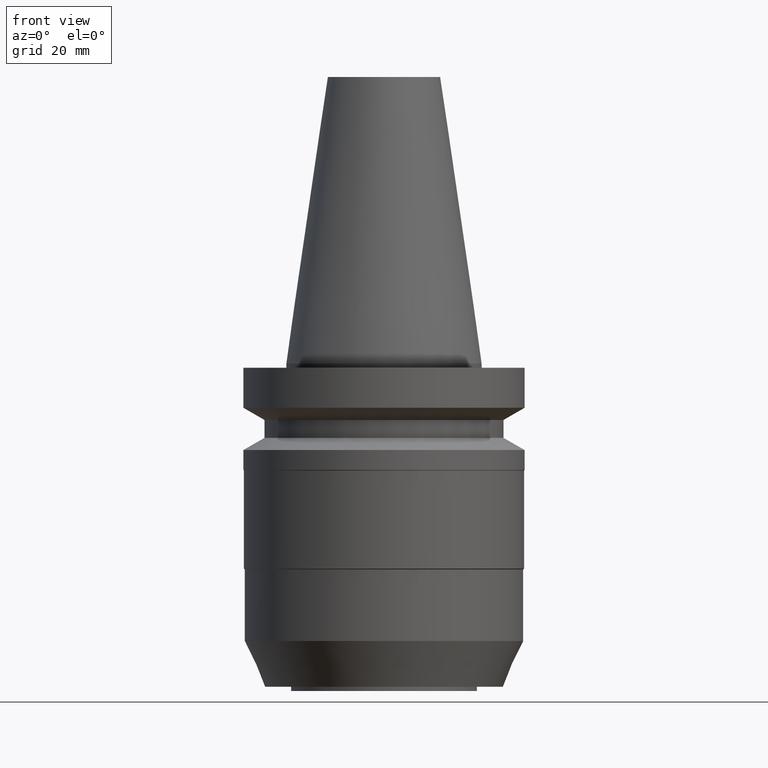
[diagram: clean part render]
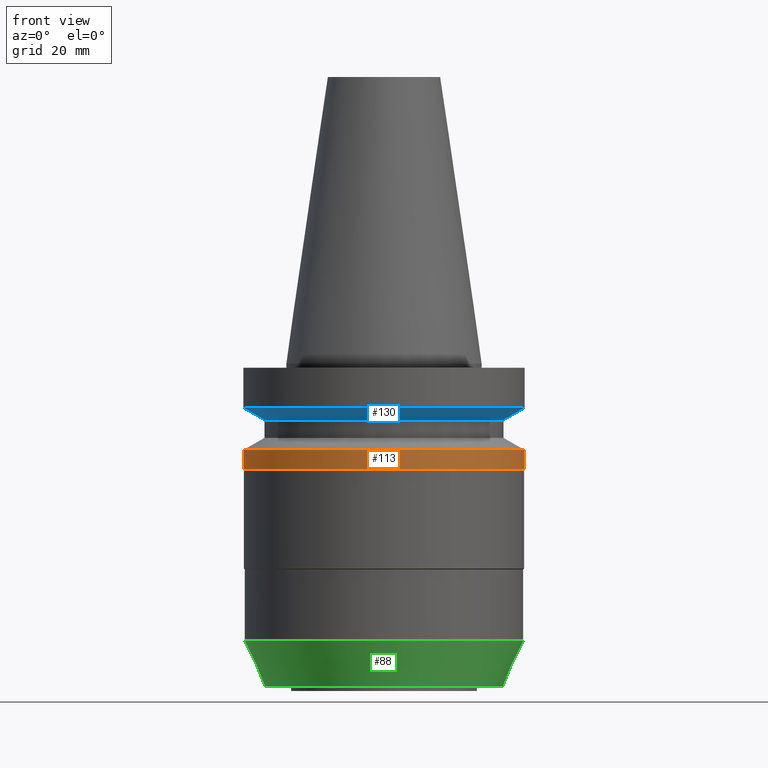
[diagram: same view with three faces highlighted in distinct colors, each labeled with its STEP entity id]
A machine part, front view with three faces highlighted in distinct colors.
Their STEP definitions:

[orange] entity #113 — the highlighted cylindrical surface (bore or boss wall) has radius 50 mm, axis along (0, 0, -1).
#83=EDGE_CURVE('Unnamed[1]',#201,#201,#202,.T.);
#113=ADVANCED_FACE('Unnamed[1]',(#246,#247),#248,.T.);
#121=EDGE_CURVE('Unnamed[1]',#258,#258,#259,.T.);
#201=VERTEX_POINT('',#351);
#202=CIRCLE('',#352,50.0);
#246=FACE_BOUND('',#407,.T.);
#247=FACE_BOUND('',#408,.T.);
#248=CYLINDRICAL_SURFACE('',#409,50.0);
#258=VERTEX_POINT('',#422);
#259=CIRCLE('',#423,50.0);
#351=CARTESIAN_POINT('',(2.31092028979915E-015,50.0,-37.7401923788655));
#352=AXIS2_PLACEMENT_3D('',#515,#516,#517);
#407=EDGE_LOOP('',(#562));
#408=EDGE_LOOP('',(#563));
#409=AXIS2_PLACEMENT_3D('',#564,#565,#566);
#422=CARTESIAN_POINT('',(1.87983283669119E-015,50.0,-30.7000000000001));
#423=AXIS2_PLACEMENT_3D('',#577,#578,#579);
#515=CARTESIAN_POINT('',(2.31092028979915E-015,4.6218405795983E-015,-37.7401923788655));
#516=DIRECTION('',(6.12323399573677E-017,1.22464679914735E-016,-1.0));
#517=DIRECTION('',(-1.23259516440783E-032,1.0,1.22464679914735E-016));
#562=ORIENTED_EDGE('',*,*,#83,.F.);
#563=ORIENTED_EDGE('',*,*,#121,.T.);
#564=CARTESIAN_POINT('',(2.09537656324517E-015,4.19075312649034E-015,-34.2200961894328));
#565=DIRECTION('',(6.12323399573677E-017,1.22464679914735E-016,-1.0));
#566=DIRECTION('',(-1.23259516440783E-032,1.0,1.22464679914735E-016));
#577=CARTESIAN_POINT('',(1.87983283669119E-015,3.75966567338238E-015,-30.7000000000001));
#578=DIRECTION('',(6.12323399573677E-017,1.22464679914735E-016,-1.0));
#579=DIRECTION('',(-1.23259516440783E-032,1.0,1.22464679914735E-016));

[blue] entity #130 — the highlighted conical surface has half-angle 60 deg.
#101=EDGE_CURVE('Unnamed[1]',#228,#228,#229,.T.);
#130=ADVANCED_FACE('Unnamed[1]',(#271,#272),#273,.T.);
#137=EDGE_CURVE('Unnamed[1]',#283,#283,#284,.T.);
#228=VERTEX_POINT('',#384);
#229=CIRCLE('',#385,50.0);
#271=FACE_BOUND('',#439,.T.);
#272=FACE_BOUND('',#440,.T.);
#273=CONICAL_SURFACE('',#441,46.25,1.04719755108882);
#283=VERTEX_POINT('',#454);
#284=CIRCLE('',#455,42.5);
#384=CARTESIAN_POINT('',(9.61347737330674E-016,50.0,-15.7));
#385=AXIS2_PLACEMENT_3D('',#543,#544,#545);
#439=EDGE_LOOP('',(#590));
#440=EDGE_LOOP('',(#591));
#441=AXIS2_PLACEMENT_3D('',#592,#593,#594);
#454=CARTESIAN_POINT('',(1.2264915470779E-015,42.5,-20.03012702));
#455=AXIS2_PLACEMENT_3D('',#604,#605,#606);
#543=CARTESIAN_POINT('',(9.61347737330675E-016,1.92269547466135E-015,-15.7));
#544=DIRECTION('',(6.12323399573677E-017,1.22464679914735E-016,-1.0));
#545=DIRECTION('',(-1.23259516440783E-032,1.0,1.22464679914735E-016));
#590=ORIENTED_EDGE('',*,*,#137,.F.);
#591=ORIENTED_EDGE('',*,*,#101,.T.);
#592=CARTESIAN_POINT('',(1.09391964220429E-015,2.18783928440857E-015,-17.86506351));
#593=DIRECTION('',(-6.12323399573676E-017,-1.22464679914735E-016,1.0));
#594=DIRECTION('',(-1.23259516440783E-032,1.0,1.22464679914735E-016));
#604=CARTESIAN_POINT('',(1.2264915470779E-015,2.45298309415579E-015,-20.03012702));
#605=DIRECTION('',(6.12323399573677E-017,1.22464679914735E-016,-1.0));
#606=DIRECTION('',(-1.23259516440783E-032,1.0,1.22464679914735E-016));

[green] entity #88 — the highlighted conical surface has half-angle 24 deg.
#88=ADVANCED_FACE('Unnamed[1]',(#208,#209),#210,.T.);
#106=EDGE_CURVE('Unnamed[1]',#236,#236,#237,.T.);
#125=EDGE_CURVE('Unnamed[1]',#264,#264,#265,.T.);
#208=FACE_BOUND('',#360,.T.);
#209=FACE_BOUND('',#361,.T.);
#210=CONICAL_SURFACE('',#362,45.8809601935171,0.418879020478635);
#236=VERTEX_POINT('',#394);
#237=CIRCLE('',#395,49.5);
#264=VERTEX_POINT('',#430);
#265=CIRCLE('',#431,42.2619203870341);
#360=EDGE_LOOP('',(#522));
#361=EDGE_LOOP('',(#523));
#362=AXIS2_PLACEMENT_3D('',#524,#525,#526);
#394=CARTESIAN_POINT('',(6.03401890607593E-015,49.5,-98.543007016832));
#395=AXIS2_PLACEMENT_3D('',#552,#553,#554);
#430=CARTESIAN_POINT('',(7.02947262710581E-015,42.2619203870341,-114.8));
#431=AXIS2_PLACEMENT_3D('',#583,#584,#585);
#522=ORIENTED_EDGE('',*,*,#125,.F.);
#523=ORIENTED_EDGE('',*,*,#106,.T.);
#524=CARTESIAN_POINT('',(6.53174576659087E-015,1.30634915331817E-014,-106.671503508416));
#525=DIRECTION('',(-6.12323399573677E-017,-1.22464679914735E-016,1.0));
#526=DIRECTION('',(-1.23259516440783E-032,1.0,1.22464679914735E-016));
#552=CARTESIAN_POINT('',(6.03401890607593E-015,1.20680378121518E-014,-98.543007016832));
#553=DIRECTION('',(6.12323399573677E-017,1.22464679914735E-016,-1.0));
#554=DIRECTION('',(-1.23259516440783E-032,1.0,1.22464679914735E-016));
#583=CARTESIAN_POINT('',(7.02947262710581E-015,1.40589452542116E-014,-114.8));
#584=DIRECTION('',(6.12323399573677E-017,1.22464679914735E-016,-1.0));
#585=DIRECTION('',(-1.23259516440783E-032,1.0,1.22464679914735E-016));